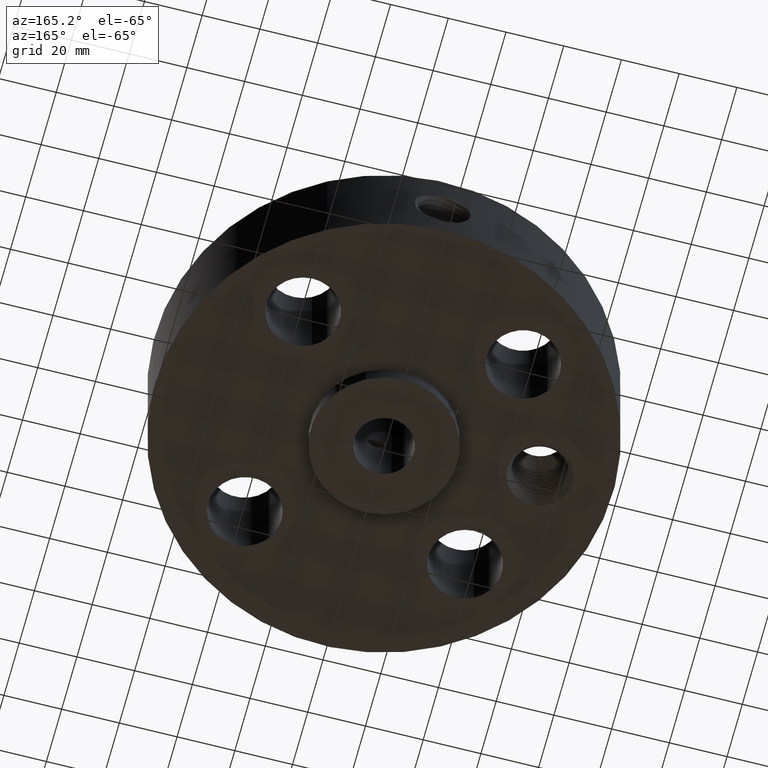
[diagram: clean part render]
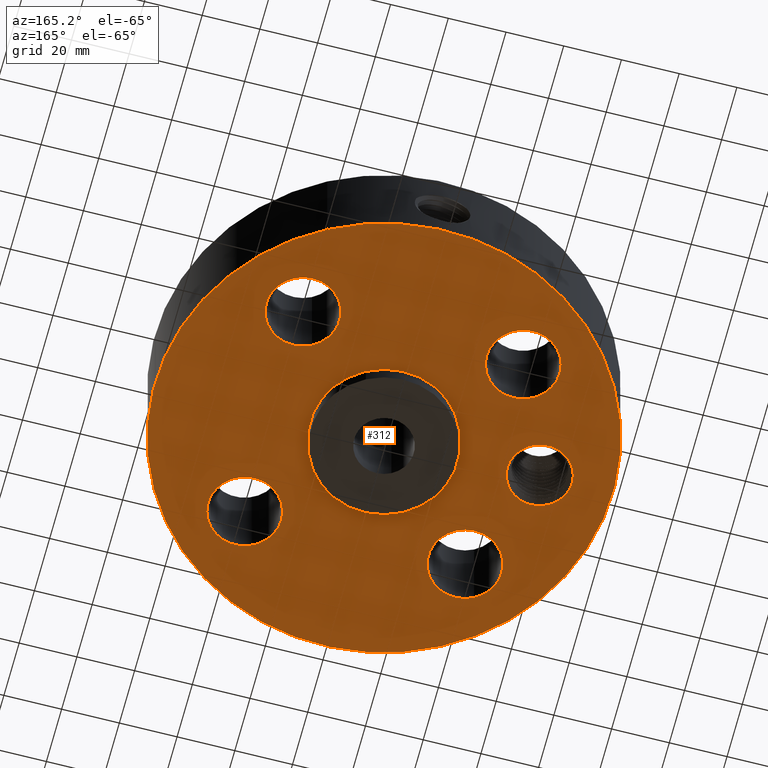
[diagram: same view with one face highlighted and labeled with its STEP entity id]
A machine part, auxiliary view. The second image highlights one B-rep face of the part: STEP entity #312.
In plain terms, the highlighted planar face has unit normal (0, 0, -1).
Its self-contained STEP definition (entity closure, byte-faithful):
#42=AXIS2_PLACEMENT_3D('Circle Axis2P3D',#40,#41,$) ;
#193=AXIS2_PLACEMENT_3D('Plane Axis2P3D',#190,#191,#192) ;
#197=AXIS2_PLACEMENT_3D('Circle Axis2P3D',#195,#196,$) ;
#206=AXIS2_PLACEMENT_3D('Circle Axis2P3D',#204,#205,$) ;
#215=AXIS2_PLACEMENT_3D('Circle Axis2P3D',#213,#214,$) ;
#224=AXIS2_PLACEMENT_3D('Circle Axis2P3D',#222,#223,$) ;
#233=AXIS2_PLACEMENT_3D('Circle Axis2P3D',#231,#232,$) ;
#242=AXIS2_PLACEMENT_3D('Circle Axis2P3D',#240,#241,$) ;
#251=AXIS2_PLACEMENT_3D('Circle Axis2P3D',#249,#250,$) ;
#260=AXIS2_PLACEMENT_3D('Circle Axis2P3D',#258,#259,$) ;
#269=AXIS2_PLACEMENT_3D('Circle Axis2P3D',#267,#268,$) ;
#278=AXIS2_PLACEMENT_3D('Circle Axis2P3D',#276,#277,$) ;
#287=AXIS2_PLACEMENT_3D('Circle Axis2P3D',#285,#286,$) ;
#296=AXIS2_PLACEMENT_3D('Circle Axis2P3D',#294,#295,$) ;
#305=AXIS2_PLACEMENT_3D('Circle Axis2P3D',#303,#304,$) ;
#40=CARTESIAN_POINT('Axis2P3D Location',(0.,0.,0.250000000001)) ;
#44=CARTESIAN_POINT('Vertex',(-1.49820480814,-2.74244550592,0.250000000001)) ;
#46=CARTESIAN_POINT('Vertex',(1.49820480814,2.74244550592,0.250000000001)) ;
#190=CARTESIAN_POINT('Axis2P3D Location',(0.,1.,0.250000000001)) ;
#195=CARTESIAN_POINT('Axis2P3D Location',(0.,0.,0.250000000001)) ;
#204=CARTESIAN_POINT('Axis2P3D Location',(-2.12500000001,0.,0.250000000001)) ;
#208=CARTESIAN_POINT('Vertex',(-1.7364064416,-0.212289628495,0.250000000001)) ;
#210=CARTESIAN_POINT('Vertex',(-2.51359355842,0.212289628495,0.250000000001)) ;
#213=CARTESIAN_POINT('Axis2P3D Location',(-2.12500000001,0.,0.250000000001)) ;
#222=CARTESIAN_POINT('Axis2P3D Location',(1.50260191003,-1.50260191003,0.250000000001)) ;
#226=CARTESIAN_POINT('Vertex',(1.94139319097,-1.74231467933,0.250000000001)) ;
#228=CARTESIAN_POINT('Vertex',(1.06381062908,-1.26288914072,0.250000000001)) ;
#231=CARTESIAN_POINT('Axis2P3D Location',(1.50260191003,-1.50260191003,0.250000000001)) ;
#240=CARTESIAN_POINT('Axis2P3D Location',(0.,0.,0.250000000001)) ;
#244=CARTESIAN_POINT('Vertex',(0.479425538606,0.877582561894,0.250000000001)) ;
#246=CARTESIAN_POINT('Vertex',(-0.479425538606,-0.877582561894,0.250000000001)) ;
#249=CARTESIAN_POINT('Axis2P3D Location',(0.,0.,0.250000000001)) ;
#258=CARTESIAN_POINT('Axis2P3D Location',(-1.50260191003,-1.50260191003,0.250000000001)) ;
#262=CARTESIAN_POINT('Vertex',(-1.26288914072,-1.06381062908,0.250000000001)) ;
#264=CARTESIAN_POINT('Vertex',(-1.74231467933,-1.94139319097,0.250000000001)) ;
#267=CARTESIAN_POINT('Axis2P3D Location',(-1.50260191003,-1.50260191003,0.250000000001)) ;
#276=CARTESIAN_POINT('Axis2P3D Location',(-1.50260191003,1.50260191003,0.250000000001)) ;
#280=CARTESIAN_POINT('Vertex',(-1.06381062908,1.26288914072,0.250000000001)) ;
#282=CARTESIAN_POINT('Vertex',(-1.94139319097,1.74231467933,0.250000000001)) ;
#285=CARTESIAN_POINT('Axis2P3D Location',(-1.50260191003,1.50260191003,0.250000000001)) ;
#294=CARTESIAN_POINT('Axis2P3D Location',(1.50260191003,1.50260191003,0.250000000001)) ;
#298=CARTESIAN_POINT('Vertex',(1.26288914072,1.06381062908,0.250000000001)) ;
#300=CARTESIAN_POINT('Vertex',(1.74231467933,1.94139319097,0.250000000001)) ;
#303=CARTESIAN_POINT('Axis2P3D Location',(1.50260191003,1.50260191003,0.250000000001)) ;
#41=DIRECTION('Axis2P3D Direction',(0.,0.,-0.0393700787402)) ;
#191=DIRECTION('Axis2P3D Direction',(0.,0.,-0.0393700787402)) ;
#192=DIRECTION('Axis2P3D XDirection',(0.0393700787402,0.,0.)) ;
#196=DIRECTION('Axis2P3D Direction',(0.,0.,-0.0393700787402)) ;
#205=DIRECTION('Axis2P3D Direction',(0.,0.,-0.0393700787402)) ;
#214=DIRECTION('Axis2P3D Direction',(0.,0.,-0.0393700787402)) ;
#223=DIRECTION('Axis2P3D Direction',(0.,0.,-0.0393700787402)) ;
#232=DIRECTION('Axis2P3D Direction',(0.,0.,-0.0393700787402)) ;
#241=DIRECTION('Axis2P3D Direction',(0.,0.,-0.0393700787402)) ;
#250=DIRECTION('Axis2P3D Direction',(0.,0.,-0.0393700787402)) ;
#259=DIRECTION('Axis2P3D Direction',(0.,0.,-0.0393700787402)) ;
#268=DIRECTION('Axis2P3D Direction',(0.,0.,-0.0393700787402)) ;
#277=DIRECTION('Axis2P3D Direction',(0.,0.,-0.0393700787402)) ;
#286=DIRECTION('Axis2P3D Direction',(0.,0.,-0.0393700787402)) ;
#295=DIRECTION('Axis2P3D Direction',(0.,0.,-0.0393700787402)) ;
#304=DIRECTION('Axis2P3D Direction',(0.,0.,-0.0393700787402)) ;
#201=ORIENTED_EDGE('',*,*,#48,.T.) ;
#202=ORIENTED_EDGE('',*,*,#199,.T.) ;
#219=ORIENTED_EDGE('',*,*,#212,.F.) ;
#220=ORIENTED_EDGE('',*,*,#217,.F.) ;
#237=ORIENTED_EDGE('',*,*,#230,.F.) ;
#238=ORIENTED_EDGE('',*,*,#235,.F.) ;
#255=ORIENTED_EDGE('',*,*,#248,.F.) ;
#256=ORIENTED_EDGE('',*,*,#253,.F.) ;
#273=ORIENTED_EDGE('',*,*,#266,.F.) ;
#274=ORIENTED_EDGE('',*,*,#271,.F.) ;
#291=ORIENTED_EDGE('',*,*,#284,.F.) ;
#292=ORIENTED_EDGE('',*,*,#289,.F.) ;
#309=ORIENTED_EDGE('',*,*,#302,.F.) ;
#310=ORIENTED_EDGE('',*,*,#307,.F.) ;
#221=FACE_BOUND('',#218,.T.) ;
#239=FACE_BOUND('',#236,.T.) ;
#257=FACE_BOUND('',#254,.T.) ;
#275=FACE_BOUND('',#272,.T.) ;
#293=FACE_BOUND('',#290,.T.) ;
#311=FACE_BOUND('',#308,.T.) ;
#312=ADVANCED_FACE('PartBody',(#203,#221,#239,#257,#275,#293,#311),#194,.T.) ;
#43=CIRCLE('generated circle',#42,3.12500000001) ;
#198=CIRCLE('generated circle',#197,3.12500000001) ;
#207=CIRCLE('generated circle',#206,0.442800000002) ;
#216=CIRCLE('generated circle',#215,0.442800000002) ;
#225=CIRCLE('generated circle',#224,0.500000000002) ;
#234=CIRCLE('generated circle',#233,0.500000000002) ;
#243=CIRCLE('generated circle',#242,1.) ;
#252=CIRCLE('generated circle',#251,1.) ;
#261=CIRCLE('generated circle',#260,0.500000000002) ;
#270=CIRCLE('generated circle',#269,0.500000000002) ;
#279=CIRCLE('generated circle',#278,0.500000000002) ;
#288=CIRCLE('generated circle',#287,0.500000000002) ;
#297=CIRCLE('generated circle',#296,0.500000000002) ;
#306=CIRCLE('generated circle',#305,0.500000000002) ;
#48=EDGE_CURVE('',#45,#47,#43,.T.) ;
#199=EDGE_CURVE('',#47,#45,#198,.T.) ;
#212=EDGE_CURVE('',#209,#211,#207,.T.) ;
#217=EDGE_CURVE('',#211,#209,#216,.T.) ;
#230=EDGE_CURVE('',#227,#229,#225,.T.) ;
#235=EDGE_CURVE('',#229,#227,#234,.T.) ;
#248=EDGE_CURVE('',#245,#247,#243,.T.) ;
#253=EDGE_CURVE('',#247,#245,#252,.T.) ;
#266=EDGE_CURVE('',#263,#265,#261,.T.) ;
#271=EDGE_CURVE('',#265,#263,#270,.T.) ;
#284=EDGE_CURVE('',#281,#283,#279,.T.) ;
#289=EDGE_CURVE('',#283,#281,#288,.T.) ;
#302=EDGE_CURVE('',#299,#301,#297,.T.) ;
#307=EDGE_CURVE('',#301,#299,#306,.T.) ;
#200=EDGE_LOOP('',(#201,#202)) ;
#218=EDGE_LOOP('',(#219,#220)) ;
#236=EDGE_LOOP('',(#237,#238)) ;
#254=EDGE_LOOP('',(#255,#256)) ;
#272=EDGE_LOOP('',(#273,#274)) ;
#290=EDGE_LOOP('',(#291,#292)) ;
#308=EDGE_LOOP('',(#309,#310)) ;
#203=FACE_OUTER_BOUND('',#200,.T.) ;
#194=PLANE('',#193) ;
#45=VERTEX_POINT('',#44) ;
#47=VERTEX_POINT('',#46) ;
#209=VERTEX_POINT('',#208) ;
#211=VERTEX_POINT('',#210) ;
#227=VERTEX_POINT('',#226) ;
#229=VERTEX_POINT('',#228) ;
#245=VERTEX_POINT('',#244) ;
#247=VERTEX_POINT('',#246) ;
#263=VERTEX_POINT('',#262) ;
#265=VERTEX_POINT('',#264) ;
#281=VERTEX_POINT('',#280) ;
#283=VERTEX_POINT('',#282) ;
#299=VERTEX_POINT('',#298) ;
#301=VERTEX_POINT('',#300) ;